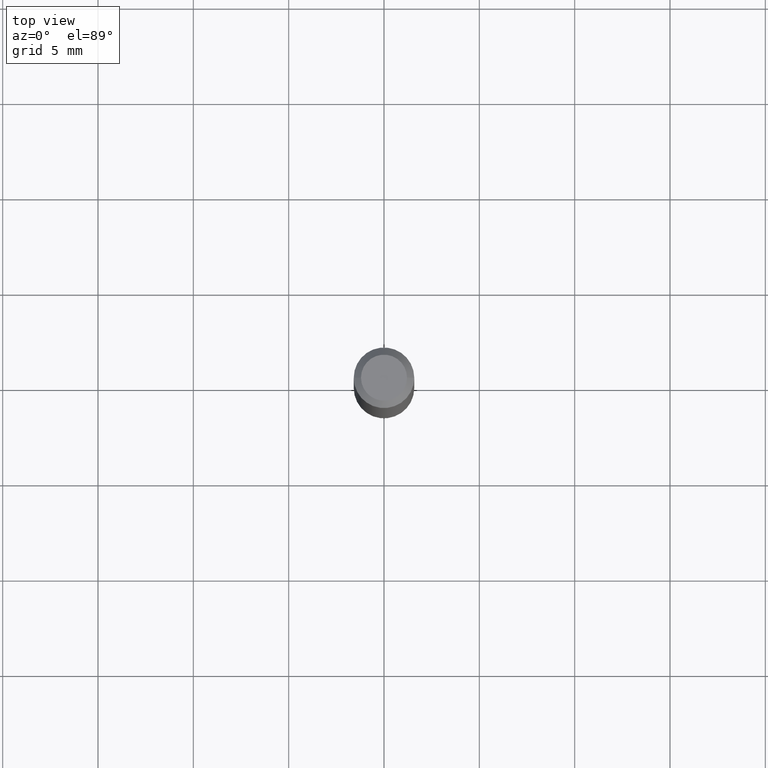
[diagram: clean part render]
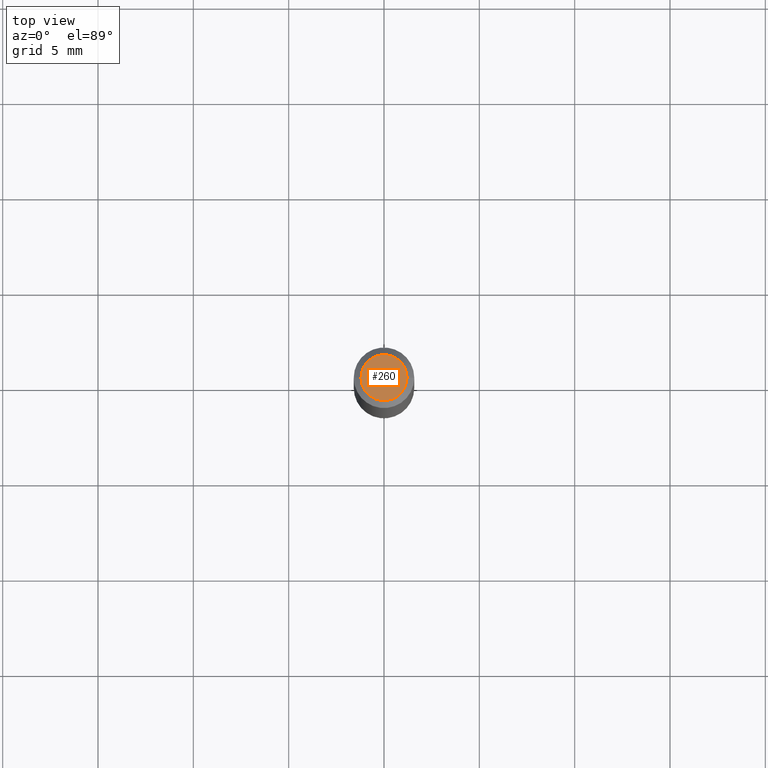
[diagram: same view with one face highlighted and labeled with its STEP entity id]
A machine part, top view. The second image highlights one B-rep face of the part: STEP entity #260.
In plain terms, the highlighted planar face has unit normal (0, -0, -1).
Its self-contained STEP definition (entity closure, byte-faithful):
#11 = VERTEX_POINT ( 'NONE', #126 ) ;
#14 = EDGE_LOOP ( 'NONE', ( #262, #448 ) ) ;
#15 = EDGE_CURVE ( 'NONE', #11, #150, #39, .T. ) ;
#16 = AXIS2_PLACEMENT_3D ( 'NONE', #62, #265, #135 ) ;
#39 = CIRCLE ( 'NONE', #16, 0.04749999999999999362 ) ;
#62 = CARTESIAN_POINT ( 'NONE',  ( -1.575719463841376315E-44, 2.249709785436367094E-30, 6.443424916547820620E-16 ) ) ;
#73 = PLANE ( 'NONE',  #75 ) ;
#75 = AXIS2_PLACEMENT_3D ( 'NONE', #348, #314, #282 ) ;
#103 = CARTESIAN_POINT ( 'NONE',  ( -0.04749999999999999362, 3.578768372314221846E-16, 6.443424916547796954E-16 ) ) ;
#126 = CARTESIAN_POINT ( 'NONE',  ( 0.04749999999999999362, -4.035134999187566790E-16, 6.443424916547846258E-16 ) ) ;
#135 = DIRECTION ( 'NONE',  ( 1.000000000000000000, -6.982962677686267499E-15, 4.852736867747366768E-29 ) ) ;
#150 = VERTEX_POINT ( 'NONE', #103 ) ;
#161 = CIRCLE ( 'NONE', #218, 0.04749999999999999362 ) ;
#172 = EDGE_CURVE ( 'NONE', #150, #11, #161, .T. ) ;
#208 = DIRECTION ( 'NONE',  ( 1.000000000000000000, -6.982962677686267499E-15, 4.852736867747366768E-29 ) ) ;
#218 = AXIS2_PLACEMENT_3D ( 'NONE', #383, #419, #208 ) ;
#260 = ADVANCED_FACE ( 'NONE', ( #277 ), #73, .F. ) ;
#262 = ORIENTED_EDGE ( 'NONE', *, *, #172, .T. ) ;
#265 = DIRECTION ( 'NONE',  ( -2.445468806185136597E-29, 3.491481338843145583E-15, 1.000000000000000000 ) ) ;
#277 = FACE_OUTER_BOUND ( 'NONE', #14, .T. ) ;
#282 = DIRECTION ( 'NONE',  ( -1.000000000000000000, 6.982962677686265922E-15, -4.876176775795935793E-29 ) ) ;
#314 = DIRECTION ( 'NONE',  ( 2.438088387897960049E-29, -3.491481338843145188E-15, -1.000000000000000000 ) ) ;
#348 = CARTESIAN_POINT ( 'NONE',  ( 3.316907271900976096E-16, 0.04749999999999999362, 1.563258822323416346E-16 ) ) ;
#383 = CARTESIAN_POINT ( 'NONE',  ( -1.575719463841376315E-44, 2.249709785436367094E-30, 6.443424916547820620E-16 ) ) ;
#419 = DIRECTION ( 'NONE',  ( -2.445468806185136597E-29, 3.491481338843145583E-15, 1.000000000000000000 ) ) ;
#448 = ORIENTED_EDGE ( 'NONE', *, *, #15, .T. ) ;